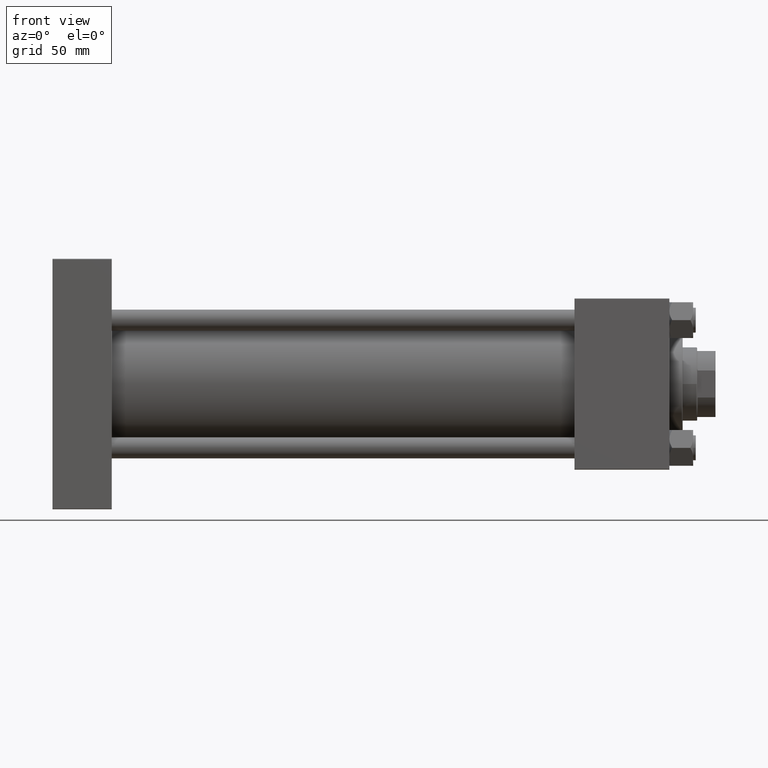
[diagram: clean part render]
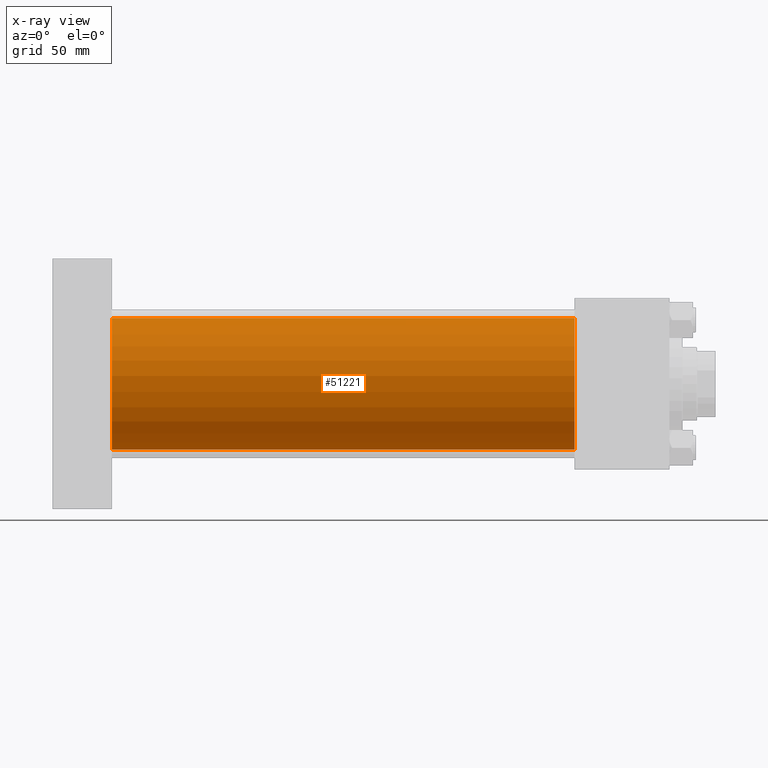
[diagram: x-ray — body ghosted, one internal face saturated and labeled with its STEP entity id]
A machine part, front view, then the same camera in x-ray: the body is ghosted and one INTERNAL B-rep face — a face not visible from any outside direction — is saturated and labeled: STEP entity #51221.
In plain terms, the highlighted cylindrical surface (partial cylindrical patch) has radius 50 mm, axis along (-1, -0, -0).
Its self-contained STEP definition (entity closure, byte-faithful):
#256 = VERTEX_POINT ( 'NONE', #31619 ) ;
#294 = AXIS2_PLACEMENT_3D ( 'NONE', #35984, #39187, #52198 ) ;
#386 = DIRECTION ( 'NONE',  ( -1.000000000000000000, -0.000000000000000000, -0.000000000000000000 ) ) ;
#2449 = CARTESIAN_POINT ( 'NONE',  ( 395.9999999999999432, 3.521148781771555838E-15, -50.00000000000000000 ) ) ;
#2709 = DIRECTION ( 'NONE',  ( 0.000000000000000000, 0.000000000000000000, -1.000000000000000000 ) ) ;
#5077 = CARTESIAN_POINT ( 'NONE',  ( 45.00000000000000000, 3.521148781771555838E-15, -50.00000000000000000 ) ) ;
#7472 = AXIS2_PLACEMENT_3D ( 'NONE', #20595, #29089, #44772 ) ;
#8377 = LINE ( 'NONE', #49823, #8784 ) ;
#8784 = VECTOR ( 'NONE', #386, 1000.000000000000000 ) ;
#9399 = CYLINDRICAL_SURFACE ( 'NONE', #7472, 50.00000000000000000 ) ;
#14257 = CARTESIAN_POINT ( 'NONE',  ( 395.9999999999999432, 3.521148781771555838E-15, -50.00000000000000000 ) ) ;
#18683 = DIRECTION ( 'NONE',  ( -1.000000000000000000, -0.000000000000000000, -0.000000000000000000 ) ) ;
#19680 = EDGE_LOOP ( 'NONE', ( #23843, #46245, #23366, #41673 ) ) ;
#19714 = LINE ( 'NONE', #2449, #50965 ) ;
#20043 = EDGE_CURVE ( 'NONE', #39542, #42906, #19714, .T. ) ;
#20595 = CARTESIAN_POINT ( 'NONE',  ( 395.9999999999999432, -2.602085213965210642E-15, 0.000000000000000000 ) ) ;
#21003 = EDGE_CURVE ( 'NONE', #41587, #42906, #33191, .T. ) ;
#23366 = ORIENTED_EDGE ( 'NONE', *, *, #21003, .F. ) ;
#23843 = ORIENTED_EDGE ( 'NONE', *, *, #36613, .T. ) ;
#24127 = CIRCLE ( 'NONE', #294, 50.00000000000000000 ) ;
#27446 = CARTESIAN_POINT ( 'NONE',  ( 45.00000000000000000, -2.602085213965210642E-15, 0.000000000000000000 ) ) ;
#27786 = EDGE_CURVE ( 'NONE', #256, #41587, #8377, .T. ) ;
#28575 = FACE_OUTER_BOUND ( 'NONE', #19680, .T. ) ;
#29089 = DIRECTION ( 'NONE',  ( -1.000000000000000000, -0.000000000000000000, -0.000000000000000000 ) ) ;
#31180 = DIRECTION ( 'NONE',  ( 1.000000000000000000, 0.000000000000000000, 0.000000000000000000 ) ) ;
#31619 = CARTESIAN_POINT ( 'NONE',  ( 395.9999999999999432, -2.602085213965210642E-15, 50.00000000000000000 ) ) ;
#33191 = CIRCLE ( 'NONE', #39121, 50.00000000000000000 ) ;
#35984 = CARTESIAN_POINT ( 'NONE',  ( 395.9999999999999432, -2.602085213965210642E-15, 0.000000000000000000 ) ) ;
#36613 = EDGE_CURVE ( 'NONE', #256, #39542, #24127, .T. ) ;
#38854 = CARTESIAN_POINT ( 'NONE',  ( 45.00000000000000000, -2.602085213965210642E-15, 50.00000000000000000 ) ) ;
#39121 = AXIS2_PLACEMENT_3D ( 'NONE', #27446, #31180, #2709 ) ;
#39187 = DIRECTION ( 'NONE',  ( 1.000000000000000000, 0.000000000000000000, 0.000000000000000000 ) ) ;
#39542 = VERTEX_POINT ( 'NONE', #14257 ) ;
#41587 = VERTEX_POINT ( 'NONE', #38854 ) ;
#41673 = ORIENTED_EDGE ( 'NONE', *, *, #27786, .F. ) ;
#42906 = VERTEX_POINT ( 'NONE', #5077 ) ;
#44772 = DIRECTION ( 'NONE',  ( 0.000000000000000000, 0.000000000000000000, 1.000000000000000000 ) ) ;
#46245 = ORIENTED_EDGE ( 'NONE', *, *, #20043, .T. ) ;
#49823 = CARTESIAN_POINT ( 'NONE',  ( 395.9999999999999432, -2.602085213965210642E-15, 50.00000000000000000 ) ) ;
#50965 = VECTOR ( 'NONE', #18683, 1000.000000000000000 ) ;
#51221 = ADVANCED_FACE ( 'NONE', ( #28575 ), #9399, .F. ) ;
#52198 = DIRECTION ( 'NONE',  ( 0.000000000000000000, 0.000000000000000000, -1.000000000000000000 ) ) ;